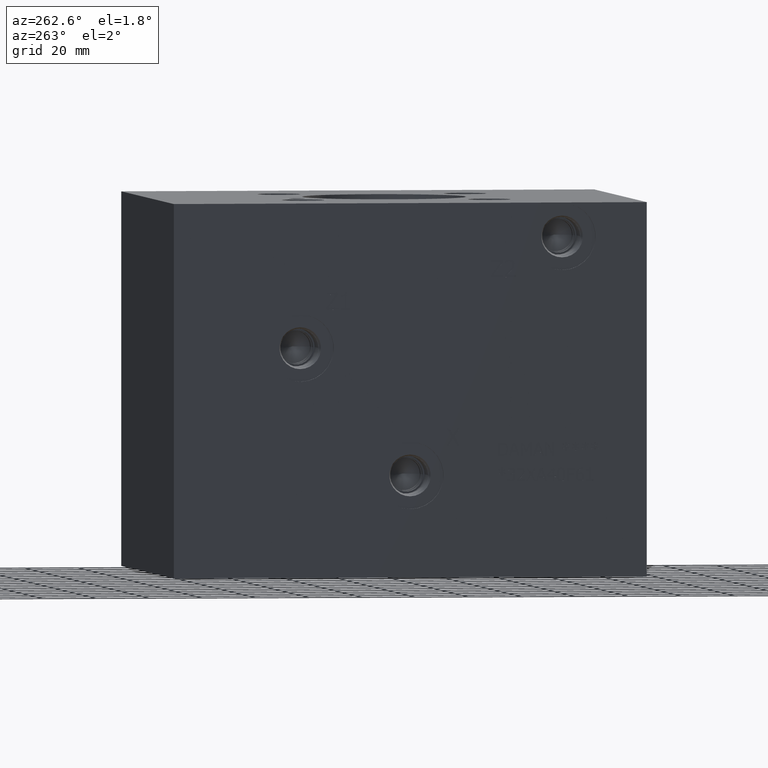
[diagram: clean part render]
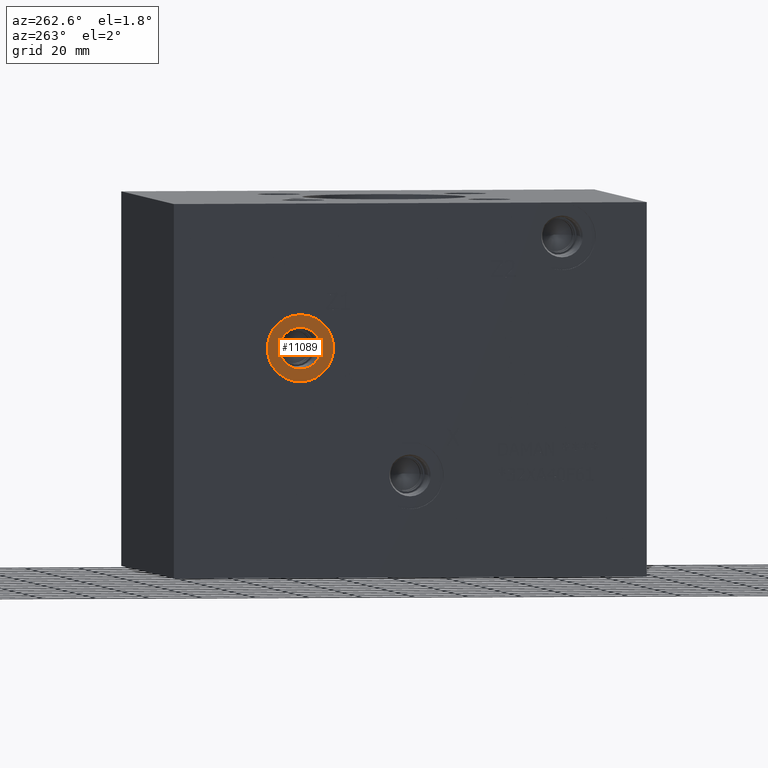
[diagram: same view with one face highlighted and labeled with its STEP entity id]
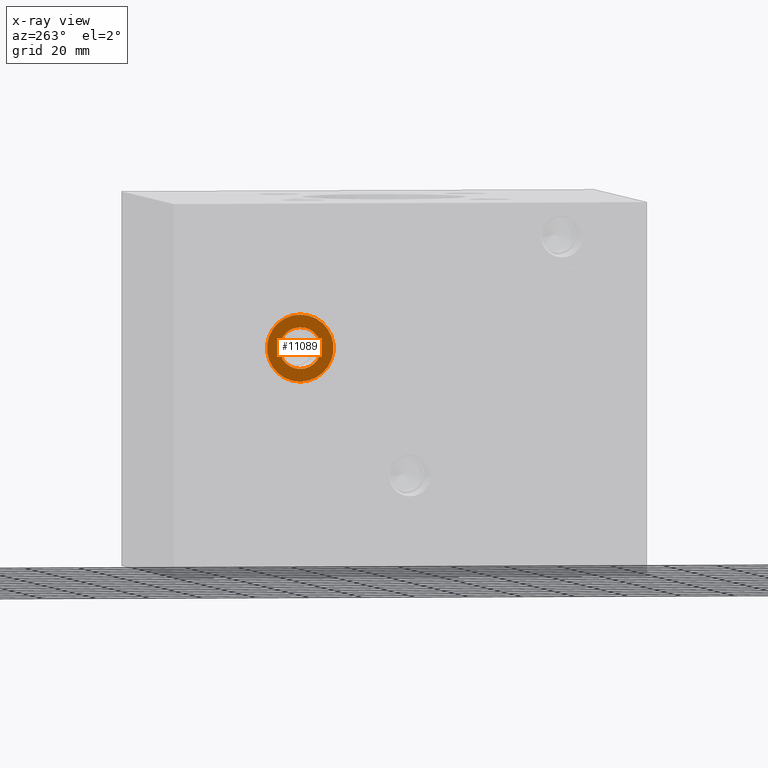
[diagram: x-ray of the same camera — body ghosted, the highlighted face saturated]
A machine part, auxiliary view. The second image highlights one B-rep face of the part: STEP entity #11089.
The next image is the same camera in x-ray: the body ghosted, the highlighted face saturated — about 0% of this face is hidden behind the body in this view.
In plain terms, the highlighted planar face has unit normal (1, 0, 0).
Its self-contained STEP definition (entity closure, byte-faithful):
#509=CIRCLE('',#11675,12.5095);
#510=CIRCLE('',#11676,12.5095);
#511=CIRCLE('',#11678,7.79780000000001);
#512=CIRCLE('',#11679,7.79780000000001);
#727=FACE_BOUND('',#1869,.T.);
#1235=FACE_OUTER_BOUND('',#1868,.T.);
#1868=EDGE_LOOP('',(#9355,#9356));
#1869=EDGE_LOOP('',(#9357,#9358));
#5064=VERTEX_POINT('',#18392);
#5065=VERTEX_POINT('',#18394);
#5066=VERTEX_POINT('',#18398);
#5067=VERTEX_POINT('',#18399);
#6542=EDGE_CURVE('',#5064,#5065,#509,.T.);
#6543=EDGE_CURVE('',#5065,#5064,#510,.T.);
#6544=EDGE_CURVE('',#5066,#5067,#511,.T.);
#6545=EDGE_CURVE('',#5067,#5066,#512,.T.);
#9355=ORIENTED_EDGE('',*,*,#6543,.F.);
#9356=ORIENTED_EDGE('',*,*,#6542,.F.);
#9357=ORIENTED_EDGE('',*,*,#6544,.T.);
#9358=ORIENTED_EDGE('',*,*,#6545,.T.);
#10173=PLANE('',#11677);
#11089=ADVANCED_FACE('',(#1235,#727),#10173,.F.);
#11675=AXIS2_PLACEMENT_3D('',#18395,#13901,#13902);
#11676=AXIS2_PLACEMENT_3D('',#18396,#13903,#13904);
#11677=AXIS2_PLACEMENT_3D('',#18397,#13905,#13906);
#11678=AXIS2_PLACEMENT_3D('',#18400,#13907,#13908);
#11679=AXIS2_PLACEMENT_3D('',#18401,#13909,#13910);
#13901=DIRECTION('center_axis',(1.,0.,0.));
#13902=DIRECTION('ref_axis',(0.,0.,-1.));
#13903=DIRECTION('center_axis',(1.,0.,0.));
#13904=DIRECTION('ref_axis',(0.,0.,-1.));
#13905=DIRECTION('center_axis',(1.,0.,0.));
#13906=DIRECTION('ref_axis',(0.,0.,-1.));
#13907=DIRECTION('center_axis',(1.,0.,0.));
#13908=DIRECTION('ref_axis',(0.,0.,-1.));
#13909=DIRECTION('center_axis',(1.,0.,0.));
#13910=DIRECTION('ref_axis',(0.,0.,-1.));
#18392=CARTESIAN_POINT('',(0.7874,130.175,73.2155));
#18394=CARTESIAN_POINT('',(0.7874,130.175,98.2345));
#18395=CARTESIAN_POINT('Origin',(0.7874,130.175,85.725));
#18396=CARTESIAN_POINT('Origin',(0.7874,130.175,85.725));
#18397=CARTESIAN_POINT('Origin',(0.7874,130.175,93.5228));
#18398=CARTESIAN_POINT('',(0.7874,130.175,93.5228));
#18399=CARTESIAN_POINT('',(0.787400000000001,130.175,77.9272));
#18400=CARTESIAN_POINT('Origin',(0.7874,130.175,85.725));
#18401=CARTESIAN_POINT('Origin',(0.7874,130.175,85.725));